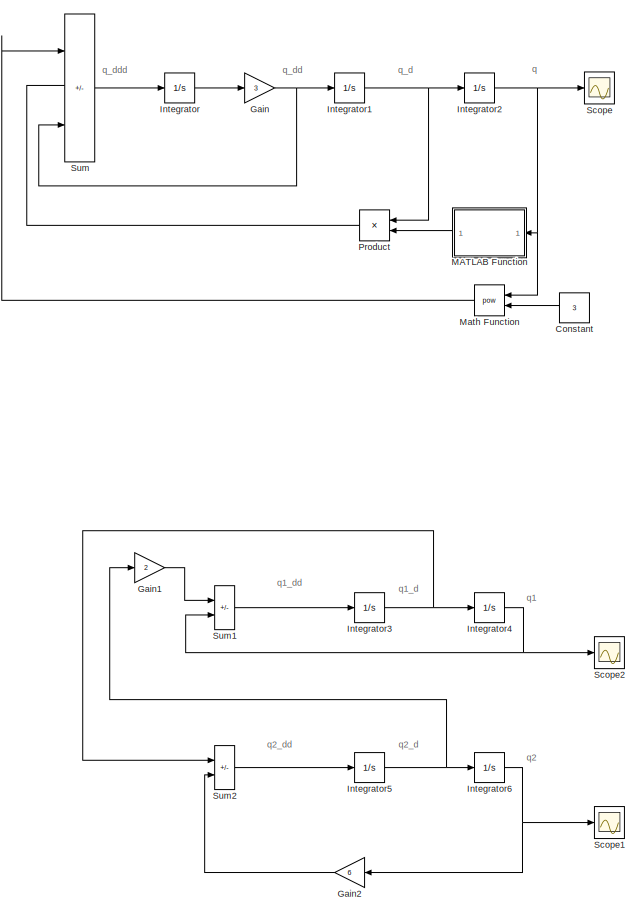
[diagram: root canvas - part 1/2, full width, top band]
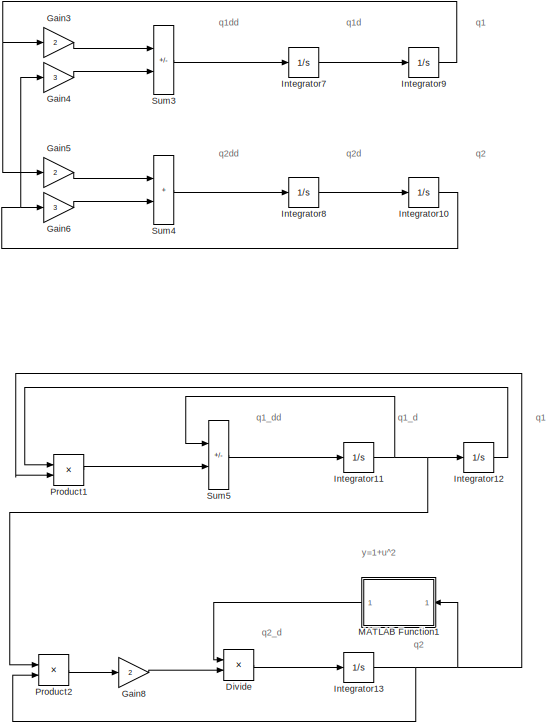
[diagram: root canvas - part 2/2, full width, bottom band]
MODEL slx_fd64076ef3b3
KIND model
CONFIG AbsTol = auto
CONFIG EnableMultiTasking = off
CONFIG FixedStep = auto
CONFIG MaxStep = 1e-6
CONFIG MinStep = auto
CONFIG RelTol = 1e-6
CONFIG SampleTimeConstraint = Unconstrained
CONFIG SolverName = VariableStepAuto
CONFIG StartTime = 0.0
CONFIG StopTime = 10.0
BLOCK [Constant] Constant
  Commented = on
  Value = 3
BLOCK [Product] Divide
  Inputs = /*
  Ports = [2, 1]
BLOCK [Gain] Gain
  Commented = on
  Gain = 3
BLOCK [Gain] Gain1
  Commented = on
  Gain = 2
BLOCK [Gain] Gain2
  Commented = on
  Gain = 6
BLOCK [Gain] Gain3
  Commented = on
  Gain = 2
BLOCK [Gain] Gain4
  Commented = on
  Gain = 3
BLOCK [Gain] Gain5
  Commented = on
  Gain = 2
BLOCK [Gain] Gain6
  Commented = on
  Gain = 3
BLOCK [Gain] Gain8
  Gain = 2
BLOCK [Integrator] Integrator
  Commented = on
  Ports = [1, 1]
BLOCK [Integrator] Integrator1
  Commented = on
  InitialCondition = 1
  Ports = [1, 1]
BLOCK [Integrator] Integrator10
  Commented = on
  Ports = [1, 1]
BLOCK [Integrator] Integrator11
  Ports = [1, 1]
BLOCK [Integrator] Integrator12
  Ports = [1, 1]
BLOCK [Integrator] Integrator13
  Ports = [1, 1]
BLOCK [Integrator] Integrator2
  Commented = on
  Ports = [1, 1]
BLOCK [Integrator] Integrator3
  Commented = on
  Ports = [1, 1]
BLOCK [Integrator] Integrator4
  Commented = on
  Ports = [1, 1]
BLOCK [Integrator] Integrator5
  Commented = on
  Ports = [1, 1]
BLOCK [Integrator] Integrator6
  Commented = on
  Ports = [1, 1]
BLOCK [Integrator] Integrator7
  Commented = on
  Ports = [1, 1]
BLOCK [Integrator] Integrator8
  Commented = on
  Ports = [1, 1]
BLOCK [Integrator] Integrator9
  Commented = on
  Ports = [1, 1]
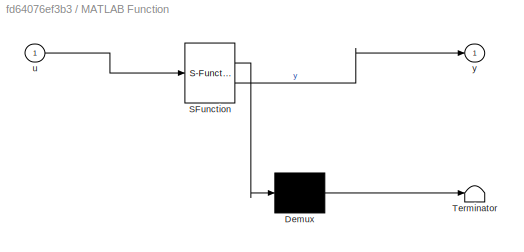
BLOCK [SubSystem] MATLAB Function
  Commented = on
  ErrorFcn = Stateflow.Translate.translate
  PermitHierarchicalResolution = ExplicitOnly
  Ports = [1, 1]
  RequestExecContextInheritance = off
  SFBlockType = MATLAB Function
  TreatAsAtomicUnit = on
BLOCK [Demux] MATLAB Function/ Demux 
  Outputs = 1
  Ports = [1, 1]
BLOCK [S-Function] MATLAB Function/ SFunction 
  EnableBusSupport = on
  FunctionName = sf_sfun
  PortCounts = [1 2]
  Ports = [1, 2]
  SFcnIsStateOwnerBlock = off
  SFunctionDeploymentMode = off
  Tag = Stateflow S-Function 2
BLOCK [Terminator] MATLAB Function/ Terminator 
BLOCK [Inport] MATLAB Function/u
BLOCK [Outport] MATLAB Function/y
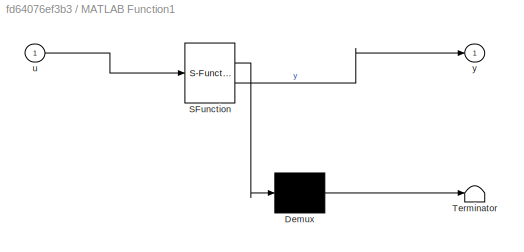
BLOCK [SubSystem] MATLAB Function1
  ErrorFcn = Stateflow.Translate.translate
  PermitHierarchicalResolution = ExplicitOnly
  Ports = [1, 1]
  RequestExecContextInheritance = off
  SFBlockType = MATLAB Function
  TreatAsAtomicUnit = on
BLOCK [Demux] MATLAB Function1/ Demux 
  Outputs = 1
  Ports = [1, 1]
BLOCK [S-Function] MATLAB Function1/ SFunction 
  EnableBusSupport = off
  FunctionName = sf_sfun
  PortCounts = [1 2]
  Ports = [1, 2]
  SFcnIsStateOwnerBlock = off
  SFunctionDeploymentMode = off
  Tag = Stateflow S-Function 1
BLOCK [Terminator] MATLAB Function1/ Terminator 
BLOCK [Inport] MATLAB Function1/u
BLOCK [Outport] MATLAB Function1/y
BLOCK [Math] Math Function
  Commented = on
  Operator = pow
  Ports = [2, 1]
BLOCK [Product] Product
  Commented = on
  Ports = [2, 1]
BLOCK [Product] Product1
  Ports = [2, 1]
BLOCK [Product] Product2
  Ports = [2, 1]
BLOCK [Scope] Scope
  Commented = on
  Floating = off
  NumInputPorts = 1
  Ports = [1]
  ScopeSpecificationString = Simulink.scopes.TimeScopeBlockCfg('CurrentConfiguration', extmgr.ConfigurationSet(extmgr.Configuration('Core','General UI',true),extmgr.Configuration('Core','Source UI',true),extmgr.Configuration('Sources','WiredSimulink',true),extmgr.Configuration('Visuals','Time Domain',true,'SerializedDisplays',{struct('MinYLimReal','-26.54002','MaxYLimReal','13.49865','YLabelReal','','MinYLimMag','0.00000','Ma...<+1337ch>
BLOCK [Scope] Scope1
  Commented = on
  Floating = off
  NumInputPorts = 1
  Ports = [1]
  ScopeSpecificationString = Simulink.scopes.TimeScopeBlockCfg('CurrentConfiguration', extmgr.ConfigurationSet(extmgr.Configuration('Core','General UI',true),extmgr.Configuration('Core','Source UI',true),extmgr.Configuration('Sources','WiredSimulink',true,'DataLoggingVariableName','ScopeData1'),extmgr.Configuration('Visuals','Time Domain',true),extmgr.Configuration('Tools','Plot Navigation',true),extmgr.Configuration('Tools',...<+40ch>
BLOCK [Scope] Scope2
  Commented = on
  Floating = off
  NumInputPorts = 1
  Ports = [1]
  ScopeSpecificationString = Simulink.scopes.TimeScopeBlockCfg('CurrentConfiguration', extmgr.ConfigurationSet(extmgr.Configuration('Core','General UI',true),extmgr.Configuration('Core','Source UI',true),extmgr.Configuration('Sources','WiredSimulink',true,'DataLoggingVariableName','ScopeData2'),extmgr.Configuration('Visuals','Time Domain',true),extmgr.Configuration('Tools','Plot Navigation',true),extmgr.Configuration('Tools',...<+40ch>
BLOCK [Sum] Sum
  Commented = on
  IconShape = rectangular
  Inputs = ---
  Ports = [3, 1]
BLOCK [Sum] Sum1
  Commented = on
  IconShape = rectangular
  Inputs = --
  Ports = [2, 1]
BLOCK [Sum] Sum2
  Commented = on
  IconShape = rectangular
  Inputs = --
  Ports = [2, 1]
BLOCK [Sum] Sum3
  Commented = on
  IconShape = rectangular
  Inputs = -+
  Ports = [2, 1]
BLOCK [Sum] Sum4
  Commented = on
  IconShape = rectangular
  Ports = [2, 1]
BLOCK [Sum] Sum5
  IconShape = rectangular
  Inputs = --
  Ports = [2, 1]
ANNOTATION (root): q
ANNOTATION (root): q1
ANNOTATION (root): q1_d
ANNOTATION (root): q1_dd
ANNOTATION (root): q1d
ANNOTATION (root): q1dd
ANNOTATION (root): q2
ANNOTATION (root): q2_d
ANNOTATION (root): q2_dd
ANNOTATION (root): q2d
ANNOTATION (root): q2dd
ANNOTATION (root): q_d
ANNOTATION (root): q_dd
ANNOTATION (root): q_ddd
ANNOTATION (root): y=1+u^2
LINE Constant:1 -> Math Function:2
LINE Divide:1 -> Integrator13:1
LINE Gain1:1 -> Sum1:1
LINE Gain2:1 -> Sum2:2
LINE Gain3:1 -> Sum3:1
LINE Gain4:1 -> Sum3:2
LINE Gain5:1 -> Sum4:1
LINE Gain6:1 -> Sum4:2
LINE Gain8:1 -> Divide:2
NET Gain:1 -> Integrator1:1, Sum:3
NET Integrator10:1 -> Gain4:1, Gain6:1
NET Integrator11:1 -> Integrator12:1, Product2:1, Sum5:1
LINE Integrator12:1 -> Product1:1
NET Integrator13:1 -> MATLAB Function1:1, Product1:2, Product2:2
NET Integrator1:1 -> Integrator2:1, Product:1
NET Integrator2:1 -> MATLAB Function:1, Math Function:1, Scope:1
NET Integrator3:1 -> Integrator4:1, Sum2:1
NET Integrator4:1 -> Scope2:1, Sum1:2
NET Integrator5:1 -> Gain1:1, Integrator6:1
NET Integrator6:1 -> Gain2:1, Scope1:1
LINE Integrator7:1 -> Integrator9:1
LINE Integrator8:1 -> Integrator10:1
NET Integrator9:1 -> Gain3:1, Gain5:1
LINE Integrator:1 -> Gain:1
LINE MATLAB Function1:1 -> Divide:1
LINE MATLAB Function:1 -> Product:2
LINE Math Function:1 -> Sum:1
LINE Product1:1 -> Sum5:2
LINE Product2:1 -> Gain8:1
LINE Product:1 -> Sum:2
LINE Sum1:1 -> Integrator3:1
LINE Sum2:1 -> Integrator5:1
LINE Sum3:1 -> Integrator7:1
LINE Sum4:1 -> Integrator8:1
LINE Sum5:1 -> Integrator11:1
LINE Sum:1 -> Integrator:1
note: NET lines group one-source signal fan-out (src -> all destinations, sorted); 1:1 wires keep LINE
CHART MATLAB Function states=1 transitions=1
  STATE_LABEL 'eML_blk_kernel()'
  STATE_LABEL 'SCRIPT:\nfunction y = fcn(u)\n\ny = sin(u);\n'
CHART MATLAB Function1 states=1 transitions=1
  STATE_LABEL 'eML_blk_kernel()'
  STATE_LABEL 'SCRIPT:\nfunction y = fcn(u)\n\ny = 1+u^2;\n'
CHART  states=0 transitions=0
CHART  states=0 transitions=0
